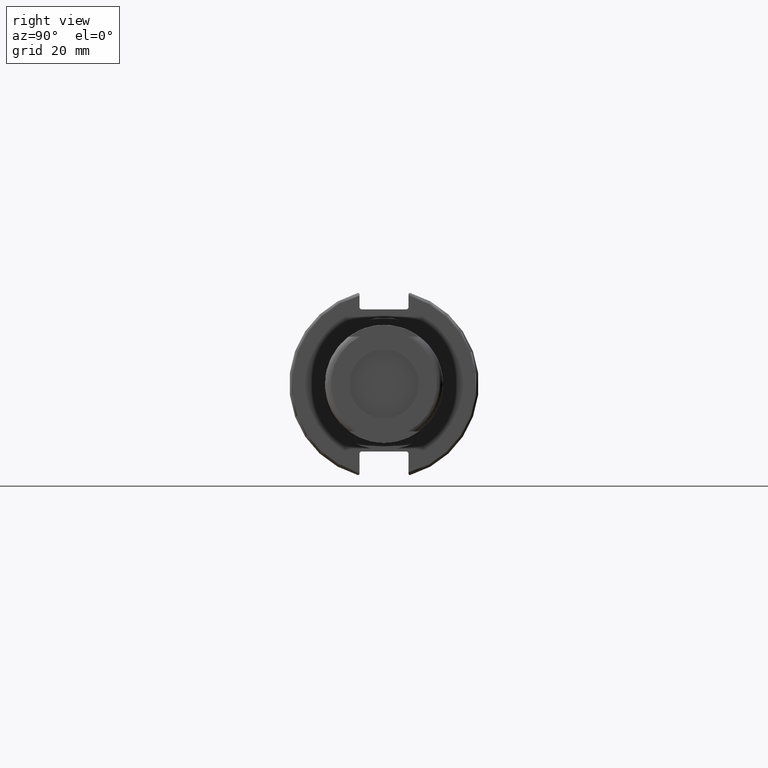
[diagram: clean part render]
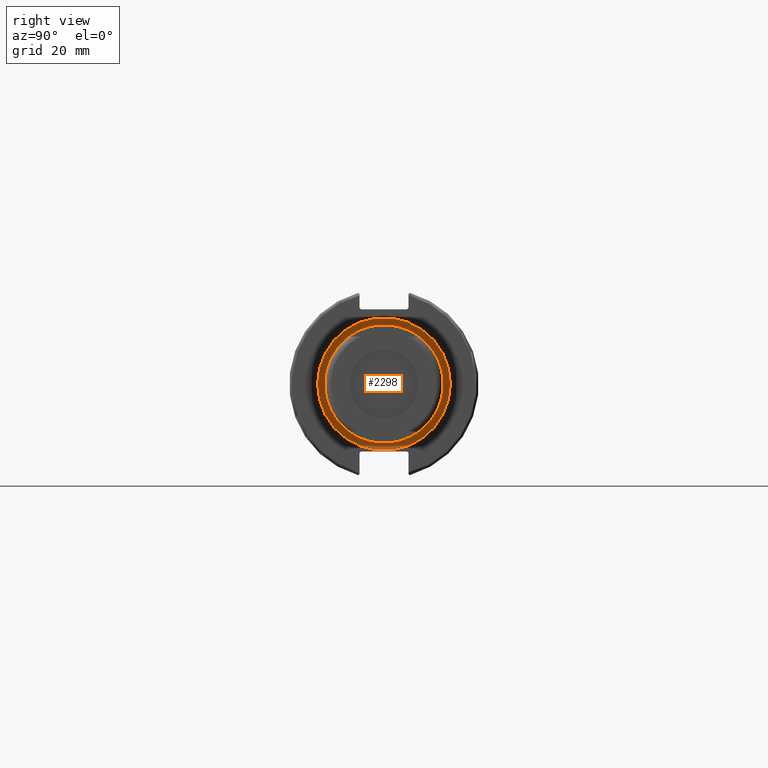
[diagram: same view with one face highlighted and labeled with its STEP entity id]
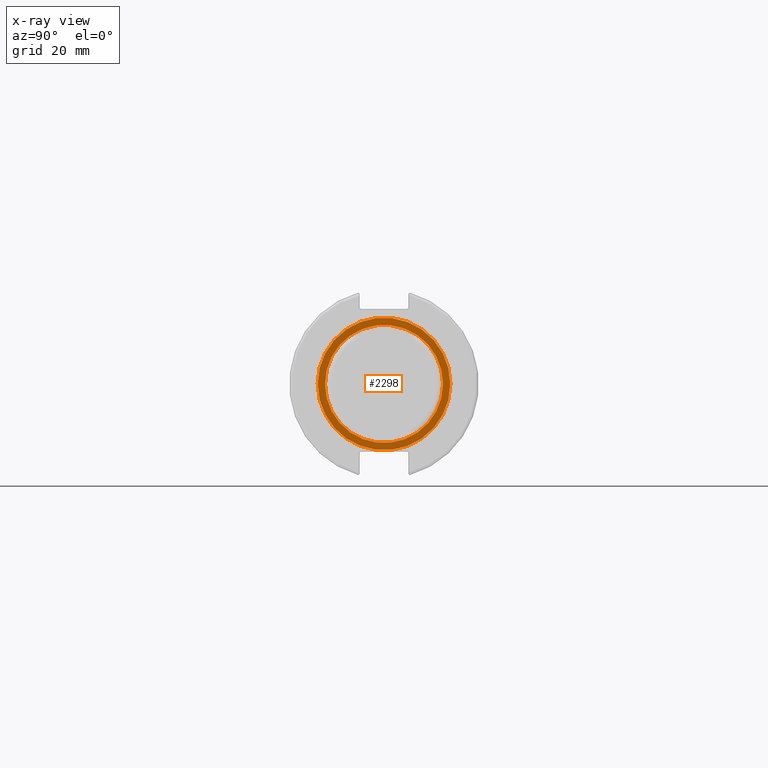
[diagram: x-ray of the same camera — body ghosted, the highlighted face saturated]
A machine part, right view. The second image highlights one B-rep face of the part: STEP entity #2298.
The next image is the same camera in x-ray: the body ghosted, the highlighted face saturated — about 3% of this face is hidden behind the body in this view.
In plain terms, the highlighted planar face has unit normal (1, 0, 0).
Its self-contained STEP definition (entity closure, byte-faithful):
#555=FACE_BOUND('',#856,.T.);
#577=CIRCLE('',#2614,22.225);
#579=CIRCLE('',#2617,19.8);
#742=FACE_OUTER_BOUND('',#855,.T.);
#855=EDGE_LOOP('',(#1720));
#856=EDGE_LOOP('',(#1721));
#1252=VERTEX_POINT('',#3746);
#1254=VERTEX_POINT('',#3752);
#1436=EDGE_CURVE('',#1252,#1252,#577,.T.);
#1439=EDGE_CURVE('',#1254,#1254,#579,.T.);
#1720=ORIENTED_EDGE('',*,*,#1436,.T.);
#1721=ORIENTED_EDGE('',*,*,#1439,.F.);
#2235=PLANE('',#2616);
#2298=ADVANCED_FACE('',(#742,#555),#2235,.T.);
#2614=AXIS2_PLACEMENT_3D('',#3747,#2952,#2953);
#2616=AXIS2_PLACEMENT_3D('',#3751,#2957,#2958);
#2617=AXIS2_PLACEMENT_3D('',#3753,#2959,#2960);
#2952=DIRECTION('center_axis',(1.,0.,0.));
#2953=DIRECTION('ref_axis',(0.,0.,-1.));
#2957=DIRECTION('center_axis',(1.,0.,0.));
#2958=DIRECTION('ref_axis',(0.,0.,-1.));
#2959=DIRECTION('center_axis',(1.,0.,0.));
#2960=DIRECTION('ref_axis',(0.,0.,-1.));
#3746=CARTESIAN_POINT('',(35.,-22.225,-2.72177751110499E-15));
#3747=CARTESIAN_POINT('Origin',(35.,0.,0.));
#3751=CARTESIAN_POINT('Origin',(35.,19.8,0.));
#3752=CARTESIAN_POINT('',(35.,-19.8,-2.42480066231176E-15));
#3753=CARTESIAN_POINT('Origin',(35.,0.,0.));